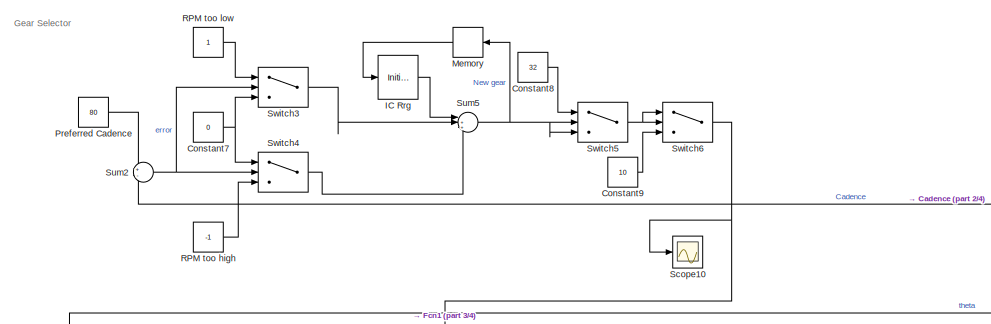
[diagram: root canvas - part 1/4, top left region]
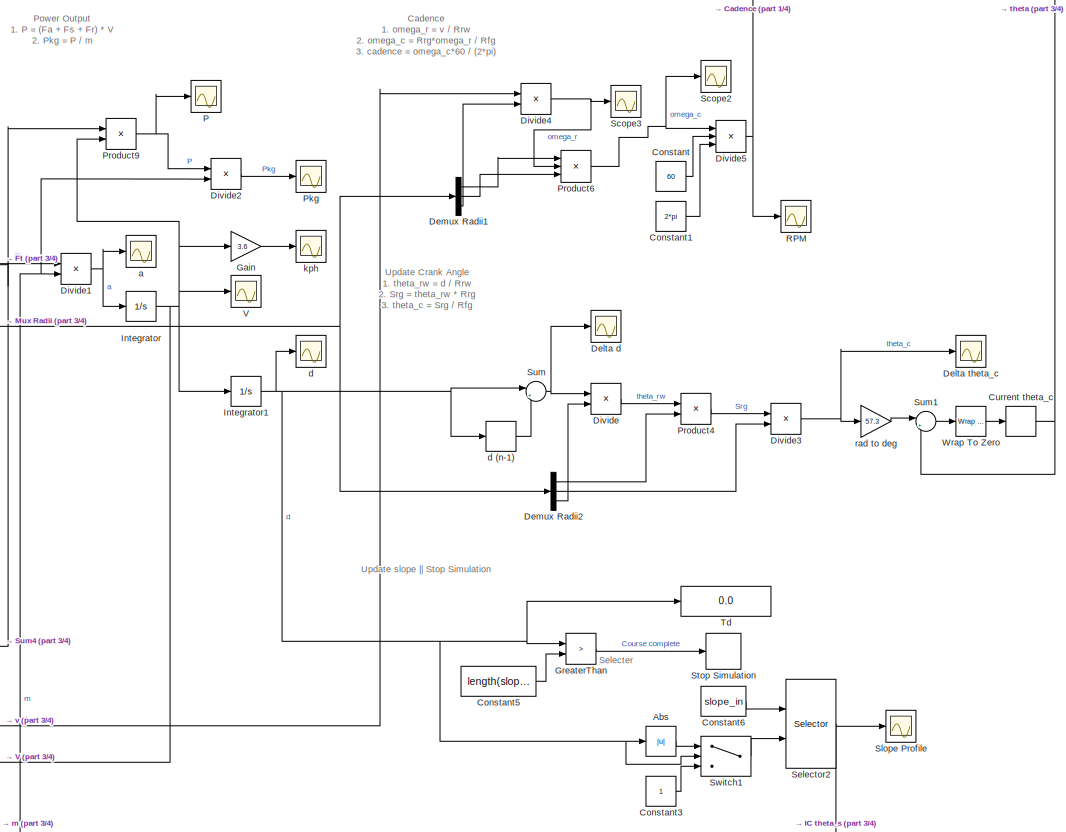
[diagram: root canvas - part 2/4, central region]
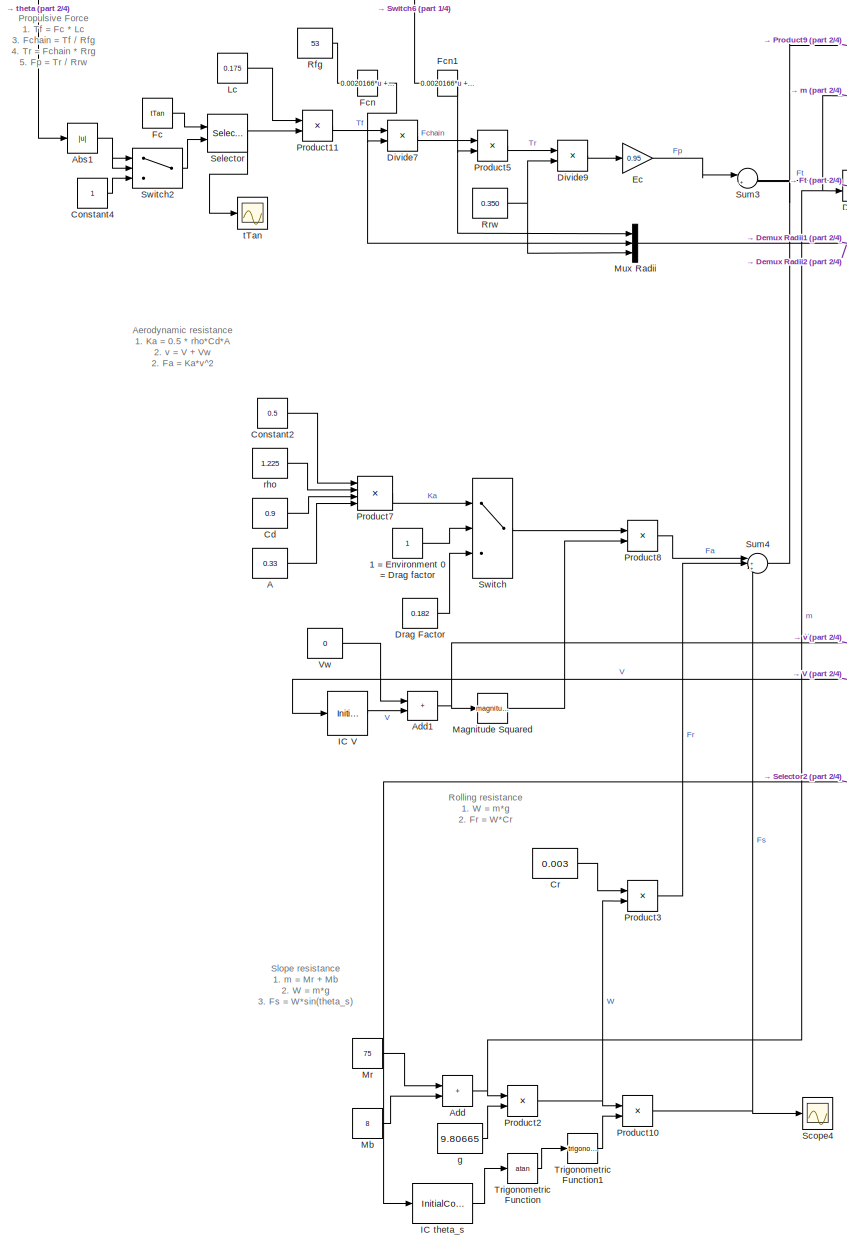
[diagram: root canvas - part 3/4, left side, full height]
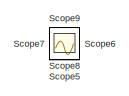
[diagram: root canvas - part 4/4, bottom right region]
MODEL slx_a559eff77e95
KIND model
CONFIG AbsTol = auto
CONFIG EnableMultiTasking = off
CONFIG FixedStep = 0.001
CONFIG MaxStep = 0.003
CONFIG MinStep = 0.001
CONFIG RelTol = 1e-3
CONFIG SampleTimeConstraint = Unconstrained
CONFIG Solver = FixedStepAuto
CONFIG SolverName = FixedStepAuto
CONFIG StartTime = 0.0
CONFIG StopTime = 30
BLOCK [Constant] 1 = Environment 0 = Drag factor
BLOCK [Constant] A
  Value = 0.33
BLOCK [Abs] Abs
  OutMin = 1
  RndMeth = Ceiling
  SaturateOnIntegerOverflow = off
BLOCK [Abs] Abs1
  OutMax = 361
  OutMin = 1
  SaturateOnIntegerOverflow = off
BLOCK [Sum] Add
  IconShape = rectangular
  Ports = [2, 1]
BLOCK [Sum] Add1
  IconShape = rectangular
  Ports = [2, 1]
BLOCK [Constant] Cd
  Value = 0.9
BLOCK [Constant] Constant
  Value = 60
BLOCK [Constant] Constant1
  Value = 2*pi
BLOCK [Constant] Constant2
  Value = 0.5
BLOCK [Constant] Constant3
BLOCK [Constant] Constant4
BLOCK [Constant] Constant5
  Value = length(slope_in)
BLOCK [Constant] Constant6
  Value = slope_in
BLOCK [Constant] Constant7
  Value = 0
BLOCK [Constant] Constant8
  Value = 32
BLOCK [Constant] Constant9
  Value = 10
BLOCK [Constant] Cr
  Value = 0.003
BLOCK [Memory] Current theta_c
BLOCK [Scope] Delta d
  Floating = off
  NumInputPorts = 1
  Ports = [1]
  ScopeSpecificationString = Simulink.scopes.TimeScopeBlockCfg('CurrentConfiguration', extmgr.ConfigurationSet(extmgr.Configuration('Core','General UI',true),extmgr.Configuration('Core','Source UI',true),extmgr.Configuration('Sources','WiredSimulink',true,'DataLoggingVariableName','ScopeData13'),extmgr.Configuration('Visuals','Time Domain',true,'SerializedDisplays',{struct('MinYLimReal','-1.00000','MaxYLimReal','1.00000','YLa...<+1392ch>
BLOCK [Scope] Delta theta_c
  Floating = off
  NumInputPorts = 1
  Ports = [1]
  ScopeSpecificationString = Simulink.scopes.TimeScopeBlockCfg('CurrentConfiguration', extmgr.ConfigurationSet(extmgr.Configuration('Core','General UI',true),extmgr.Configuration('Core','Source UI',true),extmgr.Configuration('Sources','WiredSimulink',true,'DataLoggingVariableName','ScopeData14'),extmgr.Configuration('Visuals','Time Domain',true,'SerializedDisplays',{struct('MinYLimReal','-0.0281','MaxYLimReal','0.25288','YLab...<+6347ch>
BLOCK [Demux] Demux Radii1
  Outputs = 3
  Ports = [1, 3]
BLOCK [Demux] Demux Radii2
  Outputs = 3
  Ports = [1, 3]
BLOCK [Product] Divide
  Inputs = */
  Ports = [2, 1]
BLOCK [Product] Divide1
  Inputs = */
  Ports = [2, 1]
BLOCK [Product] Divide2
  Inputs = */
  Ports = [2, 1]
BLOCK [Product] Divide3
  Inputs = */
  Ports = [2, 1]
BLOCK [Product] Divide4
  Inputs = */
  Ports = [2, 1]
BLOCK [Product] Divide5
  Inputs = **/
  Ports = [3, 1]
BLOCK [Product] Divide7
  Inputs = */
  Ports = [2, 1]
BLOCK [Product] Divide9
  Inputs = */
  Ports = [2, 1]
BLOCK [Constant] Drag Factor
  Value = 0.182
BLOCK [Gain] Ec
  Gain = 0.95
BLOCK [Constant] Fc
  Value = tTan
BLOCK [Fcn] Fcn
  Expr = 0.0020166*u + 0.00028032
BLOCK [Fcn] Fcn1
  Expr = 0.0020166*u + 0.00028032
BLOCK [Gain] Gain
  Gain = 3.6
BLOCK [RelationalOperator] GreaterThan
  InputSameDT = off
  Operator = >
  OutDataTypeStr = boolean
  Ports = [2, 1]
  RndMeth = Simplest
BLOCK [InitialCondition] IC Rrg
  Value = 16
BLOCK [InitialCondition] IC V
  Value = 0.1
BLOCK [InitialCondition] IC theta_s
  Value = slope_in(1)
BLOCK [Integrator] Integrator
  Ports = [1, 1]
BLOCK [Integrator] Integrator1
  Ports = [1, 1]
BLOCK [Constant] Lc
  Value = 0.175
BLOCK [Math] Magnitude Squared
  Operator = magnitude^2
  Ports = [1, 1]
BLOCK [Constant] Mb 
  Value = 8
BLOCK [Memory] Memory
BLOCK [Constant] Mr 
  Value = 75
BLOCK [Mux] Mux Radii
  DisplayOption = bar
  Inputs = 3
  Ports = [3, 1]
BLOCK [Scope] P
  Floating = off
  NumInputPorts = 1
  Ports = [1]
  ScopeSpecificationString = Simulink.scopes.TimeScopeBlockCfg('CurrentConfiguration', extmgr.ConfigurationSet(extmgr.Configuration('Core','General UI',true),extmgr.Configuration('Core','Source UI',true),extmgr.Configuration('Sources','WiredSimulink',true,'DataLoggingVariableName','P','DataLogging',true),extmgr.Configuration('Visuals','Time Domain',true,'SerializedDisplays',{struct('MinYLimReal','-51.46391','MaxYLimReal','463...<+1408ch>
BLOCK [Scope] Pkg
  Floating = off
  NumInputPorts = 1
  Ports = [1]
  ScopeSpecificationString = Simulink.scopes.TimeScopeBlockCfg('CurrentConfiguration', extmgr.ConfigurationSet(extmgr.Configuration('Core','General UI',true),extmgr.Configuration('Core','Source UI',true),extmgr.Configuration('Sources','WiredSimulink',true,'DataLoggingVariableName','ScopeData4'),extmgr.Configuration('Visuals','Time Domain',true,'SerializedDisplays',{struct('MinYLimReal','-1.00000','MaxYLimReal','1.00000','YLab...<+1362ch>
BLOCK [Constant] Preferred Cadence
  Value = 80
BLOCK [Product] Product10
  Ports = [2, 1]
BLOCK [Product] Product11
  Ports = [2, 1]
BLOCK [Product] Product2
  Ports = [2, 1]
BLOCK [Product] Product3
  Ports = [2, 1]
BLOCK [Product] Product4
  Ports = [2, 1]
BLOCK [Product] Product5
  Ports = [2, 1]
BLOCK [Product] Product6
  Inputs = **/
  Ports = [3, 1]
BLOCK [Product] Product7
  Inputs = 4
  Ports = [4, 1]
BLOCK [Product] Product8
  Ports = [2, 1]
BLOCK [Product] Product9
  Ports = [2, 1]
BLOCK [Scope] RPM
  Floating = off
  NumInputPorts = 1
  Ports = [1]
  ScopeSpecificationString = Simulink.scopes.TimeScopeBlockCfg('CurrentConfiguration', extmgr.ConfigurationSet(extmgr.Configuration('Core','General UI',true),extmgr.Configuration('Core','Source UI',true),extmgr.Configuration('Sources','WiredSimulink',true,'DataLoggingVariableName','ScopeData11'),extmgr.Configuration('Visuals','Time Domain',true,'SerializedDisplays',{struct('MinYLimReal','-9.35944','MaxYLimReal','84.35397','YL...<+1448ch>
BLOCK [Constant] RPM too high
  Value = -1
BLOCK [Constant] RPM too low 
BLOCK [Constant] Rfg
  Value = 53
BLOCK [Constant] Rrw
  Value = 0.350
BLOCK [Scope] Scope
  Floating = off
  IOType = viewer
  NumInputPorts = 1
  Ports = []
  ScopeSpecificationString = Simulink.scopes.TimeScopeBlockCfg('CurrentConfiguration', extmgr.ConfigurationSet(extmgr.Configuration('Core','General UI',true),extmgr.Configuration('Core','Source UI',true),extmgr.Configuration('Sources','WiredSimulink',true),extmgr.Configuration('Visuals','Time Domain',true,'SerializedDisplays',{struct('MinYLimReal','-32.33236','MaxYLimReal','367.99108','YLabelReal','','MinYLimMag','0.00000','M...<+1733ch>
BLOCK [Scope] Scope1
  Floating = off
  IOType = viewer
  NumInputPorts = 1
  Ports = []
  ScopeSpecificationString = Simulink.scopes.TimeScopeBlockCfg('CurrentConfiguration', extmgr.ConfigurationSet(extmgr.Configuration('Core','General UI',true),extmgr.Configuration('Core','Source UI',true),extmgr.Configuration('Sources','WiredSimulink',true,'DataLoggingVariableName','ScopeData1'),extmgr.Configuration('Visuals','Time Domain',true,'SerializedDisplays',{struct('MinYLimReal','43.05129','MaxYLimReal','338.42638','YL...<+1399ch>
BLOCK [Scope] Scope10
  Floating = off
  NumInputPorts = 1
  Ports = [1]
  ScopeSpecificationString = Simulink.scopes.TimeScopeBlockCfg('CurrentConfiguration', extmgr.ConfigurationSet(extmgr.Configuration('Core','General UI',true),extmgr.Configuration('Core','Source UI',true),extmgr.Configuration('Sources','WiredSimulink',true,'DataLoggingVariableName','ScopeData1'),extmgr.Configuration('Visuals','Time Domain',true,'SerializedDisplays',{struct('MinYLimReal','15.125','MaxYLimReal','33.875','YLabelR...<+1409ch>
BLOCK [Scope] Scope2
  Floating = off
  NumInputPorts = 1
  Ports = [1]
  ScopeSpecificationString = Simulink.scopes.TimeScopeBlockCfg('CurrentConfiguration', extmgr.ConfigurationSet(extmgr.Configuration('Core','General UI',true),extmgr.Configuration('Core','Source UI',true),extmgr.Configuration('Sources','WiredSimulink',true,'DataLoggingVariableName','ScopeData2'),extmgr.Configuration('Visuals','Time Domain',true,'SerializedDisplays',{struct('MinYLimReal','-0.98012','MaxYLimReal','8.83353','YLab...<+1366ch>
BLOCK [Scope] Scope3
  Floating = off
  NumInputPorts = 1
  Ports = [1]
  ScopeSpecificationString = Simulink.scopes.TimeScopeBlockCfg('CurrentConfiguration', extmgr.ConfigurationSet(extmgr.Configuration('Core','General UI',true),extmgr.Configuration('Core','Source UI',true),extmgr.Configuration('Sources','WiredSimulink',true,'DataLoggingVariableName','ScopeData3'),extmgr.Configuration('Visuals','Time Domain',true,'SerializedDisplays',{struct('MinYLimReal','0.18571','MaxYLimReal','0.38571','YLabe...<+1364ch>
BLOCK [Scope] Scope4
  Floating = off
  NumInputPorts = 1
  Ports = [1]
  ScopeSpecificationString = Simulink.scopes.TimeScopeBlockCfg('CurrentConfiguration', extmgr.ConfigurationSet(extmgr.Configuration('Core','General UI',true),extmgr.Configuration('Core','Source UI',true),extmgr.Configuration('Sources','WiredSimulink',true,'DataLoggingVariableName','ScopeData4'),extmgr.Configuration('Visuals','Time Domain',true,'SerializedDisplays',{struct('MinYLimReal','1.48601','MaxYLimReal','3.48601','YLabe...<+1359ch>
BLOCK [Scope] Scope5
  Floating = off
  IOType = viewer
  NumInputPorts = 1
  Ports = []
  ScopeSpecificationString = Simulink.scopes.TimeScopeBlockCfg('CurrentConfiguration', extmgr.ConfigurationSet(extmgr.Configuration('Core','General UI',true),extmgr.Configuration('Core','Source UI',true),extmgr.Configuration('Sources','WiredSimulink',true,'DataLoggingVariableName','ScopeData6'),extmgr.Configuration('Visuals','Time Domain',true,'SerializedDisplays',{struct('MinYLimReal','0.9','MaxYLimReal','1.1','YLabelReal','...<+1325ch>
BLOCK [Scope] Scope6
  Floating = off
  IOType = viewer
  NumInputPorts = 1
  Ports = []
  ScopeSpecificationString = Simulink.scopes.TimeScopeBlockCfg('CurrentConfiguration', extmgr.ConfigurationSet(extmgr.Configuration('Core','General UI',true),extmgr.Configuration('Core','Source UI',true),extmgr.Configuration('Sources','WiredSimulink',true,'DataLoggingVariableName','ScopeData7'),extmgr.Configuration('Visuals','Time Domain',true,'SerializedDisplays',{struct('MinYLimReal','0.99999968','MaxYLimReal','1.00000023',...<+1526ch>
BLOCK [Scope] Scope7
  Floating = off
  IOType = viewer
  NumInputPorts = 1
  Ports = []
  ScopeSpecificationString = Simulink.scopes.TimeScopeBlockCfg('CurrentConfiguration', extmgr.ConfigurationSet(extmgr.Configuration('Core','General UI',true),extmgr.Configuration('Core','Source UI',true),extmgr.Configuration('Sources','WiredSimulink',true,'DataLoggingVariableName','ScopeData8'),extmgr.Configuration('Visuals','Time Domain',true,'SerializedDisplays',{struct('MinYLimReal','-1.00000','MaxYLimReal','1.00000','YLab...<+1504ch>
BLOCK [Scope] Scope8
  Floating = off
  IOType = viewer
  NumInputPorts = 1
  Ports = []
  ScopeSpecificationString = Simulink.scopes.TimeScopeBlockCfg('CurrentConfiguration', extmgr.ConfigurationSet(extmgr.Configuration('Core','General UI',true),extmgr.Configuration('Core','Source UI',true),extmgr.Configuration('Sources','WiredSimulink',true,'DataLoggingVariableName','ScopeData9'),extmgr.Configuration('Visuals','Time Domain',true,'SerializedDisplays',{struct('MinYLimReal','-10.00000','MaxYLimReal','10.00000','YL...<+1365ch>
BLOCK [Scope] Scope9
  Floating = off
  IOType = viewer
  NumInputPorts = 1
  Ports = []
  ScopeSpecificationString = Simulink.scopes.TimeScopeBlockCfg('CurrentConfiguration', extmgr.ConfigurationSet(extmgr.Configuration('Core','General UI',true),extmgr.Configuration('Core','Source UI',true),extmgr.Configuration('Sources','WiredSimulink',true,'DataLoggingVariableName','ScopeData10'),extmgr.Configuration('Visuals','Time Domain',true,'SerializedDisplays',{struct('MinYLimReal','0.52657','MaxYLimReal','5.26088','YLab...<+2189ch>
BLOCK [Selector] Selector
  IndexOptions = Index vector (port)
  Indices = [1 3]
  InputPortWidth = 361
  OutputSizes = 1
  Ports = [2, 1]
BLOCK [Selector] Selector2
  IndexOptions = Index vector (port)
  Indices = [1 3]
  InputPortWidth = length(slope_in)
  OutputSizes = 1
  Ports = [2, 1]
BLOCK [Scope] Slope Profile
  Floating = off
  NumInputPorts = 1
  Ports = [1]
  ScopeSpecificationString = Simulink.scopes.TimeScopeBlockCfg('CurrentConfiguration', extmgr.ConfigurationSet(extmgr.Configuration('Core','General UI',true),extmgr.Configuration('Core','Source UI',true),extmgr.Configuration('Sources','WiredSimulink',true,'DataLoggingVariableName','ScopeData6'),extmgr.Configuration('Visuals','Time Domain',true,'SerializedDisplays',{struct('MinYLimReal','0.003045','MaxYLimReal','0.003141','YLa...<+1402ch>
BLOCK [Stop] Stop Simulation
BLOCK [Sum] Sum
  Inputs = |+-
  Ports = [2, 1]
BLOCK [Sum] Sum1
  Inputs = |++
  Ports = [2, 1]
BLOCK [Sum] Sum2
  Inputs = +-
  Ports = [2, 1]
BLOCK [Sum] Sum3
  Inputs = |+-
  Ports = [2, 1]
BLOCK [Sum] Sum4
  Inputs = |+++
  Ports = [3, 1]
BLOCK [Sum] Sum5
  AccumDataTypeStr = double
  Inputs = |+++
  OutDataTypeStr = double
  OutMax = 32
  OutMin = 11
  Ports = [3, 1]
BLOCK [Switch] Switch
  Criteria = u2 > Threshold
  InputSameDT = off
  SaturateOnIntegerOverflow = off
BLOCK [Switch] Switch1
  Criteria = u2 > Threshold
  InputSameDT = off
  SaturateOnIntegerOverflow = off
  Threshold = 1
BLOCK [Switch] Switch2
  Criteria = u2 > Threshold
  InputSameDT = off
  OutMax = 361
  OutMin = 1
  SaturateOnIntegerOverflow = off
  Threshold = 1
BLOCK [Switch] Switch3
  Criteria = u2 > Threshold
  InputSameDT = off
  SaturateOnIntegerOverflow = off
  Threshold = 5
BLOCK [Switch] Switch4
  Criteria = u2 > Threshold
  InputSameDT = off
  SaturateOnIntegerOverflow = off
  Threshold = -5
BLOCK [Switch] Switch5
  Criteria = u2 > Threshold
  InputSameDT = off
  SaturateOnIntegerOverflow = off
  Threshold = 32
BLOCK [Switch] Switch6
  Criteria = u2 > Threshold
  InputSameDT = off
  SaturateOnIntegerOverflow = off
  Threshold = 10
BLOCK [Display] Td
  Decimation = 1
  Ports = [1]
BLOCK [Trigonometry] Trigonometric Function
  Operator = atan
  Ports = [1, 1]
BLOCK [Trigonometry] Trigonometric Function1
  Ports = [1, 1]
BLOCK [Scope] V
  Floating = off
  NumInputPorts = 1
  Ports = [1]
  ScopeSpecificationString = Simulink.scopes.TimeScopeBlockCfg('CurrentConfiguration', extmgr.ConfigurationSet(extmgr.Configuration('Core','General UI',true),extmgr.Configuration('Core','Source UI',true),extmgr.Configuration('Sources','WiredSimulink',true,'DataLoggingVariableName','ScopeData2'),extmgr.Configuration('Visuals','Time Domain',true,'SerializedDisplays',{struct('MinYLimReal','-7.55326','MaxYLimReal','12.85027','YLa...<+4142ch>
BLOCK [Constant] Vw
  Value = 0
BLOCK [Reference] Wrap To Zero  REF=simulink/Discontinuities/Wrap To Zero
  Ports = [1, 1]
  SourceBlock = simulink/Discontinuities/Wrap To Zero
  SourceProductBaseCode = SL
  SourceType = Wrap To Zero
BLOCK [Scope] a
  Floating = off
  NumInputPorts = 1
  Ports = [1]
  ScopeSpecificationString = Simulink.scopes.TimeScopeBlockCfg('CurrentConfiguration', extmgr.ConfigurationSet(extmgr.Configuration('Core','General UI',true),extmgr.Configuration('Core','Source UI',true),extmgr.Configuration('Sources','WiredSimulink',true,'DataLoggingVariableName','ScopeData1'),extmgr.Configuration('Visuals','Time Domain',true,'SerializedDisplays',{struct('MinYLimReal','-98.61921','MaxYLimReal','174.61758','Y...<+1370ch>
BLOCK [Scope] d
  Floating = off
  NumInputPorts = 1
  Ports = [1]
  ScopeSpecificationString = Simulink.scopes.TimeScopeBlockCfg('CurrentConfiguration', extmgr.ConfigurationSet(extmgr.Configuration('Core','General UI',true),extmgr.Configuration('Core','Source UI',true),extmgr.Configuration('Sources','WiredSimulink',true,'DataLoggingVariableName','ScopeData5'),extmgr.Configuration('Visuals','Time Domain',true,'SerializedDisplays',{struct('MinYLimReal','-1.00000','MaxYLimReal','1.00000','YLab...<+1461ch>
BLOCK [Memory] d (n-1)
BLOCK [Constant] g
  Value = 9.80665
BLOCK [Scope] kph
  Floating = off
  NumInputPorts = 1
  Ports = [1]
  ScopeSpecificationString = Simulink.scopes.TimeScopeBlockCfg('CurrentConfiguration', extmgr.ConfigurationSet(extmgr.Configuration('Core','General UI',true),extmgr.Configuration('Core','Source UI',true),extmgr.Configuration('Sources','WiredSimulink',true,'DataLoggingVariableName','ScopeData5'),extmgr.Configuration('Visuals','Time Domain',true,'SerializedDisplays',{struct('MinYLimReal','-5.59902','MaxYLimReal','50.39118','YLa...<+1396ch>
BLOCK [Gain] rad to deg
  Gain = 57.3
BLOCK [Constant] rho
  Value = 1.225
BLOCK [Scope] tTan
  Floating = off
  NumInputPorts = 1
  Ports = [1]
  ScopeSpecificationString = Simulink.scopes.TimeScopeBlockCfg('CurrentConfiguration', extmgr.ConfigurationSet(extmgr.Configuration('Core','General UI',true),extmgr.Configuration('Core','Source UI',true),extmgr.Configuration('Sources','WiredSimulink',true,'DataLoggingVariableName','ScopeData7'),extmgr.Configuration('Visuals','Time Domain',true,'SerializedDisplays',{struct('MinYLimReal','203.42034','MaxYLimReal','1102.19192','...<+14535ch>
ANNOTATION (root): Aerodynamic resistance 1. Ka = 0.5 * rho*Cd*A 2. v = V + Vw 2. Fa = Ka*v^2
ANNOTATION (root): Cadence 1. omega_r = v / Rrw 2. omega_c = Rrg*omega_r / Rfg 3. cadence = omega_c*60 / (2*pi)
ANNOTATION (root): Gear Selector
ANNOTATION (root): Power Output 1. P = (Fa + Fs + Fr) * V 2. Pkg = P / m
ANNOTATION (root): Propulsive Force 1. Tf = Fc * Lc 3. Fchain = Tf / Rfg 4. Tr = Fchain * Rrg 5. Fp = Tr / Rrw
ANNOTATION (root): Rolling resistance 1. W = m*g 2. Fr = W*Cr
ANNOTATION (root): Selecter
ANNOTATION (root): Slope resistance 1. m = Mr + Mb 2. W = m*g 3. Fs = W*sin(theta_s)
ANNOTATION (root): Update Crank Angle 1. theta_rw = d / Rrw 2. Srg = theta_rw * Rrg 3. theta_c = Srg / Rfg
ANNOTATION (root): Update slope || Stop Simulation
LINE 1 = Environment 0 = Drag factor:1 -> Switch:2
LINE A:1 -> Product7:4
NET Abs1:1 -> Switch2:1, Switch2:2
LINE Abs:1 -> Switch1:1
NET Add1:1 -> Divide4:1, Magnitude Squared:1
NET Add:1 -> Divide1:2, Divide2:2, Product2:1
LINE Cd:1 -> Product7:3
LINE Constant1:1 -> Divide5:3
LINE Constant2:1 -> Product7:1
LINE Constant3:1 -> Switch1:3
LINE Constant4:1 -> Switch2:3
LINE Constant5:1 -> GreaterThan:2
LINE Constant6:1 -> Selector2:1
NET Constant7:1 -> Switch3:3, Switch4:1
LINE Constant8:1 -> Switch5:1
LINE Constant9:1 -> Switch6:3
LINE Constant:1 -> Divide5:2
LINE Cr:1 -> Product3:1
NET Current theta_c:1 -> Abs1:1, Sum1:2
LINE Demux Radii1:1 -> Product6:1
LINE Demux Radii1:2 -> Product6:3
LINE Demux Radii1:3 -> Divide4:2
LINE Demux Radii2:1 -> Product4:2
LINE Demux Radii2:2 -> Divide3:2
LINE Demux Radii2:3 -> Divide:2
NET Divide1:1 -> Integrator:1, a:1
LINE Divide2:1 -> Pkg:1
NET Divide3:1 -> Delta theta_c:1, rad to deg:1
NET Divide4:1 -> Product6:2, Scope3:1
NET Divide5:1 -> RPM:1, Sum2:2
LINE Divide7:1 -> Product5:1
LINE Divide9:1 -> Ec:1
LINE Divide:1 -> Product4:1
LINE Drag Factor:1 -> Switch:3
LINE Ec:1 -> Sum3:1
LINE Fc:1 -> Selector:1
NET Fcn1:1 -> Mux Radii:1, Product5:2
NET Fcn:1 -> Divide7:2, Mux Radii:2
LINE Gain:1 -> kph:1
LINE GreaterThan:1 -> Stop Simulation:1
LINE IC Rrg:1 -> Sum5:1
LINE IC V:1 -> Add1:2
LINE IC theta_s:1 -> Trigonometric Function:1
NET Integrator1:1 -> Abs:1, GreaterThan:1, Sum:1, Switch1:2, Td:1, d (n-1):1, d:1
NET Integrator:1 -> Gain:1, IC V:1, Integrator1:1, Product9:2, V:1
LINE Lc:1 -> Product11:1
LINE Magnitude Squared:1 -> Product8:2
LINE Mb :1 -> Add:2
LINE Memory:1 -> IC Rrg:1
LINE Mr :1 -> Add:1
NET Mux Radii:1 -> Demux Radii1:1, Demux Radii2:1
LINE Preferred Cadence:1 -> Sum2:1
NET Product10:1 -> Scope4:1, Sum4:3
LINE Product11:1 -> Divide7:1
NET Product2:1 -> Product10:1, Product3:2
LINE Product3:1 -> Sum4:2
LINE Product4:1 -> Divide3:1
LINE Product5:1 -> Divide9:1
NET Product6:1 -> Divide5:1, Scope2:1
LINE Product7:1 -> Switch:1
LINE Product8:1 -> Sum4:1
NET Product9:1 -> Divide2:1, P:1
LINE RPM too high:1 -> Switch4:3
LINE RPM too low :1 -> Switch3:1
LINE Rfg:1 -> Fcn:1
NET Rrw:1 -> Divide9:2, Mux Radii:3
NET Selector2:1 -> IC theta_s:1, Slope Profile:1
NET Selector:1 -> Product11:2, tTan:1
LINE Sum1:1 -> Wrap To Zero:1
NET Sum2:1 -> Switch3:2, Switch4:2
LINE Sum3:1 -> Divide1:1
NET Sum4:1 -> Product9:1, Sum3:2
NET Sum5:1 -> Memory:1, Switch5:2, Switch5:3
NET Sum:1 -> Delta d:1, Divide:1
LINE Switch1:1 -> Selector2:2
LINE Switch2:1 -> Selector:2
LINE Switch3:1 -> Sum5:2
LINE Switch4:1 -> Sum5:3
NET Switch5:1 -> Switch6:1, Switch6:2
NET Switch6:1 -> Fcn1:1, Scope10:1
LINE Switch:1 -> Product8:1
LINE Trigonometric Function1:1 -> Product10:2
LINE Trigonometric Function:1 -> Trigonometric Function1:1
LINE Vw:1 -> Add1:1
LINE Wrap To Zero:1 -> Current theta_c:1
LINE d (n-1):1 -> Sum:2
LINE g:1 -> Product2:2
LINE rad to deg:1 -> Sum1:1
LINE rho:1 -> Product7:2
note: NET lines group one-source signal fan-out (src -> all destinations, sorted); 1:1 wires keep LINE
